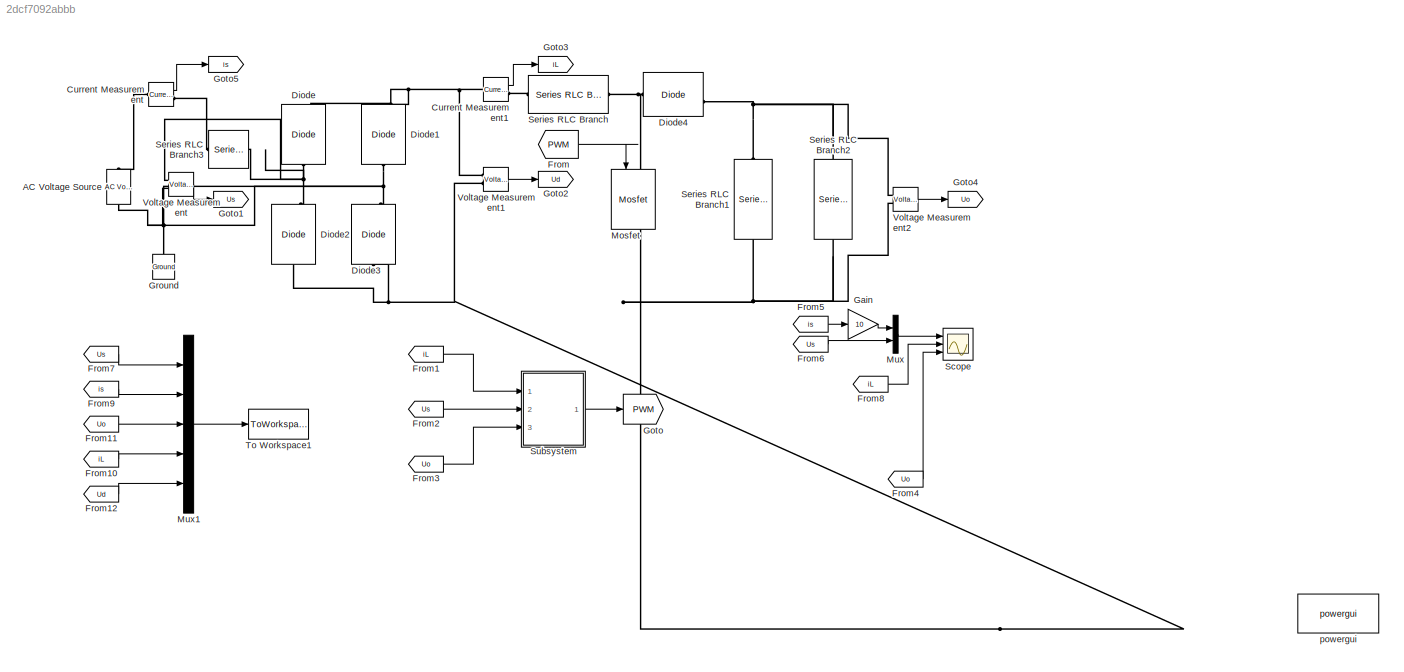
MODEL slx_2dcf7092abbb
KIND model
CONFIG AbsTol = auto
CONFIG EnableMultiTasking = off
CONFIG FixedStep = auto
CONFIG MaxStep = 1e-6
CONFIG MinStep = auto
CONFIG RelTol = 1e-3
CONFIG SampleTimeConstraint = Unconstrained
CONFIG Solver = VariableStepAuto
CONFIG SolverName = VariableStepAuto
CONFIG StartTime = 0.0
CONFIG StopTime = 0.2
BLOCK [Reference] AC Voltage Source  REF=powerlib/Electrical
Sources/AC Voltage Source
  Ports = [0, 0, 0, 0, 0, 1, 1]
  SourceBlock = powerlib/Electrical\nSources/AC Voltage Source
  SourceProductBaseCode = PS
  SourceProductName = Simscape Electrical
  SourceType = AC Voltage Source
BLOCK [Reference] Current Measurement  REF=powerlib/Measurements/Current Measurement
  Ports = [0, 1, 0, 0, 0, 1, 1]
  SourceBlock = powerlib/Measurements/Current Measurement
  SourceProductBaseCode = PS
  SourceProductName = Simscape Electrical
  SourceType = Current Measurement
  UserDataPersistent = on
BLOCK [Reference] Current Measurement1  REF=powerlib/Measurements/Current Measurement
  Ports = [0, 1, 0, 0, 0, 1, 1]
  SourceBlock = powerlib/Measurements/Current Measurement
  SourceProductBaseCode = PS
  SourceProductName = Simscape Electrical
  SourceType = Current Measurement
  UserDataPersistent = on
BLOCK [Reference] Diode  REF=powerlib/Power
Electronics/Diode
  Ports = [0, 1, 0, 0, 0, 1, 1]
  SourceBlock = powerlib/Power\nElectronics/Diode
  SourceProductBaseCode = PS
  SourceProductName = Simscape Electrical
  SourceType = Diode
BLOCK [Reference] Diode1  REF=powerlib/Power
Electronics/Diode
  Ports = [0, 1, 0, 0, 0, 1, 1]
  SourceBlock = powerlib/Power\nElectronics/Diode
  SourceProductBaseCode = PS
  SourceProductName = Simscape Electrical
  SourceType = Diode
BLOCK [Reference] Diode2  REF=powerlib/Power
Electronics/Diode
  Ports = [0, 1, 0, 0, 0, 1, 1]
  SourceBlock = powerlib/Power\nElectronics/Diode
  SourceProductBaseCode = PS
  SourceProductName = Simscape Electrical
  SourceType = Diode
BLOCK [Reference] Diode3  REF=powerlib/Power
Electronics/Diode
  Ports = [0, 1, 0, 0, 0, 1, 1]
  SourceBlock = powerlib/Power\nElectronics/Diode
  SourceProductBaseCode = PS
  SourceProductName = Simscape Electrical
  SourceType = Diode
BLOCK [Reference] Diode4  REF=powerlib/Power
Electronics/Diode
  Ports = [0, 1, 0, 0, 0, 1, 1]
  SourceBlock = powerlib/Power\nElectronics/Diode
  SourceProductBaseCode = PS
  SourceProductName = Simscape Electrical
  SourceType = Diode
BLOCK [From] From
  GotoTag = PWM
  IconDisplay = Signal name
BLOCK [From] From1
  GotoTag = iL
BLOCK [From] From10
  GotoTag = iL
BLOCK [From] From11
  GotoTag = Uo
BLOCK [From] From12
  GotoTag = Ud
BLOCK [From] From2
  GotoTag = Us
BLOCK [From] From3
  GotoTag = Uo
BLOCK [From] From4
  GotoTag = Uo
BLOCK [From] From5
  GotoTag = is
BLOCK [From] From6
  GotoTag = Us
BLOCK [From] From7
  GotoTag = Us
BLOCK [From] From8
  GotoTag = iL
BLOCK [From] From9
  GotoTag = is
BLOCK [Gain] Gain
  Gain = 10
  OutDataTypeStr = Inherit: Inherit via internal rule
  ParamDataTypeStr = Inherit: Inherit via internal rule
  SaturateOnIntegerOverflow = off
BLOCK [Goto] Goto
  GotoTag = PWM
BLOCK [Goto] Goto1
  GotoTag = Us
BLOCK [Goto] Goto2
  GotoTag = Ud
BLOCK [Goto] Goto3
  GotoTag = iL
BLOCK [Goto] Goto4
  GotoTag = Uo
BLOCK [Goto] Goto5
  GotoTag = is
BLOCK [Reference] Ground  REF=powerlib/Elements/Ground
  Ports = [0, 0, 0, 0, 0, 1]
  SourceBlock = powerlib/Elements/Ground
  SourceProductBaseCode = PS
  SourceProductName = Simscape Electrical
  SourceType = Ground
BLOCK [Reference] Mosfet  REF=powerlib/Power
Electronics/Mosfet
  Ports = [1, 1, 0, 0, 0, 1, 1]
  SourceBlock = powerlib/Power\nElectronics/Mosfet
  SourceProductBaseCode = PS
  SourceProductName = Simscape Electrical
  SourceType = Mosfet
BLOCK [Mux] Mux
  DisplayOption = bar
  Inputs = 2
  Ports = [2, 1]
BLOCK [Mux] Mux1
  DisplayOption = bar
  Inputs = 5
  Ports = [5, 1]
BLOCK [Scope] Scope
  Floating = off
  NumInputPorts = 3
  Ports = [3]
  ScopeSpecificationString = Simulink.scopes.TimeScopeBlockCfg('CurrentConfiguration', extmgr.ConfigurationSet(extmgr.Configuration('Core','General UI',true),extmgr.Configuration('Core','Source UI',true),extmgr.Configuration('Sources','WiredSimulink',true),extmgr.Configuration('Visuals','Time Domain',true,'SerializedDisplays',{struct('MinYLimReal','-400.54536','MaxYLimReal','400.44376','YLabelReal','','MinYLimMag',' 0.00000',...<+2714ch>
BLOCK [Reference] Series RLC Branch  REF=powerlib/Elements/Series RLC Branch
  Ports = [0, 0, 0, 0, 0, 1, 1]
  SourceBlock = powerlib/Elements/Series RLC Branch
  SourceProductBaseCode = PS
  SourceProductName = Simscape Electrical
  SourceType = Series RLC Branch
BLOCK [Reference] Series RLC Branch1  REF=powerlib/Elements/Series RLC Branch
  Ports = [0, 0, 0, 0, 0, 1, 1]
  SourceBlock = powerlib/Elements/Series RLC Branch
  SourceProductBaseCode = PS
  SourceProductName = Simscape Electrical
  SourceType = Series RLC Branch
BLOCK [Reference] Series RLC Branch2  REF=powerlib/Elements/Series RLC Branch
  Ports = [0, 0, 0, 0, 0, 1, 1]
  SourceBlock = powerlib/Elements/Series RLC Branch
  SourceProductBaseCode = PS
  SourceProductName = Simscape Electrical
  SourceType = Series RLC Branch
BLOCK [Reference] Series RLC Branch3  REF=powerlib/Elements/Series RLC Branch
  Ports = [0, 0, 0, 0, 0, 1, 1]
  SourceBlock = powerlib/Elements/Series RLC Branch
  SourceProductBaseCode = PS
  SourceProductName = Simscape Electrical
  SourceType = Series RLC Branch
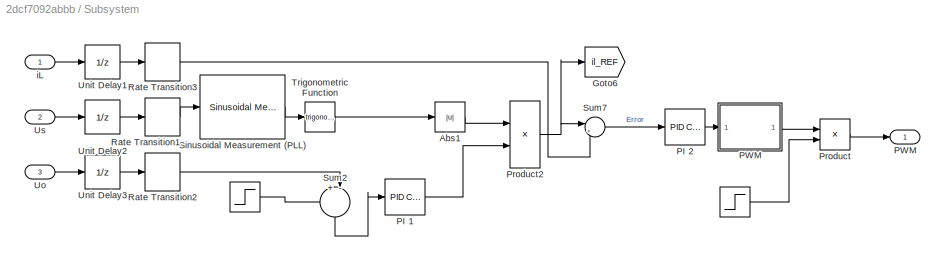
BLOCK [SubSystem] Subsystem
  Ports = [3, 1]
  RequestExecContextInheritance = off
BLOCK [Step] Subsystem/ 
  SampleTime = Tsc
  Time = 0.1
BLOCK [Step] Subsystem/  
  After = 350
  SampleTime = Tsc
  Time = 0
BLOCK [Abs] Subsystem/Abs1
  SaturateOnIntegerOverflow = off
BLOCK [Goto] Subsystem/Goto6
  GotoTag = il_REF
  TagVisibility = global
BLOCK [Reference] Subsystem/PI 1  REF=simulink/Continuous/PID Controller
  Ports = [1, 1]
  SourceBlock = simulink/Continuous/PID Controller
  SourceProductBaseCode = SL
  SourceProductName = Simulink
  SourceType = PID 1dof
BLOCK [Reference] Subsystem/PI 2  REF=simulink/Continuous/PID Controller
  Ports = [1, 1]
  SourceBlock = simulink/Continuous/PID Controller
  SourceProductBaseCode = SL
  SourceProductName = Simulink
  SourceType = PID 1dof
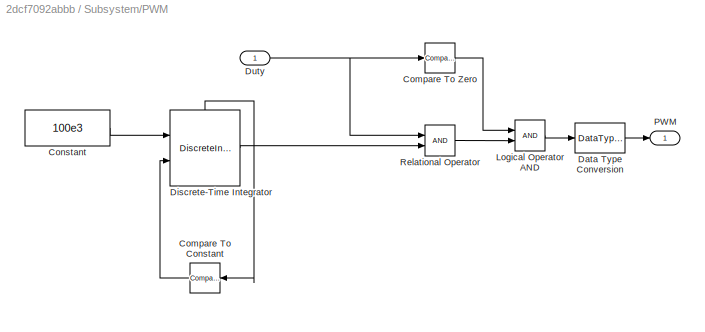
BLOCK [SubSystem] Subsystem/PWM
  Ports = [1, 1]
  RequestExecContextInheritance = off
BLOCK [Outport] Subsystem/PWM 
  IconDisplay = Port number
BLOCK [Reference] Subsystem/PWM/Compare To Constant  REF=simulink/Logic and Bit
Operations/Compare
To Constant
  Ports = [1, 1]
  SourceBlock = simulink/Logic and Bit\nOperations/Compare\nTo Constant
  SourceProductBaseCode = SL
  SourceProductName = Simulink
  SourceType = Compare To Constant
BLOCK [Reference] Subsystem/PWM/Compare To Zero  REF=simulink/Logic and Bit
Operations/Compare
To Zero
  Ports = [1, 1]
  SourceBlock = simulink/Logic and Bit\nOperations/Compare\nTo Zero
  SourceProductBaseCode = SL
  SourceProductName = Simulink
  SourceType = Compare To Zero
BLOCK [Constant] Subsystem/PWM/Constant
  SampleTime = Tsc
  Value = 100e3
BLOCK [DataTypeConversion] Subsystem/PWM/Data Type Conversion
  OutDataTypeStr = double
  RndMeth = Floor
  SaturateOnIntegerOverflow = off
BLOCK [DiscreteIntegrator] Subsystem/PWM/Discrete-Time Integrator
  ExternalReset = rising
  ICPrevOutput = DiscIntNeverNeededParam
  ICPrevScaledInput = DiscIntNeverNeededParam
  InitialConditionSetting = Auto
  Ports = [2, 1, 0, 0, 1]
  SampleTime = Tsc
  ShowStatePort = on
BLOCK [Inport] Subsystem/PWM/Duty
  IconDisplay = Port number
BLOCK [Logic] Subsystem/PWM/Logical Operator AND
  AllPortsSameDT = off
  OutDataTypeStr = boolean
  Ports = [2, 1]
BLOCK [Outport] Subsystem/PWM/PWM
  IconDisplay = Port number
  VectorParamsAs1DForOutWhenUnconnected = off
BLOCK [RelationalOperator] Subsystem/PWM/Relational Operator
  InputSameDT = off
  OutDataTypeStr = boolean
  Ports = [2, 1]
BLOCK [Product] Subsystem/Product
  InputSameDT = off
  OutDataTypeStr = Inherit: Inherit via internal rule
  Ports = [2, 1]
  RndMeth = Floor
  SaturateOnIntegerOverflow = off
BLOCK [Product] Subsystem/Product2
  InputSameDT = off
  OutDataTypeStr = Inherit: Inherit via internal rule
  Ports = [2, 1]
  RndMeth = Floor
  SaturateOnIntegerOverflow = off
BLOCK [RateTransition] Subsystem/Rate Transition1
  OutPortSampleTime = Tsc
BLOCK [RateTransition] Subsystem/Rate Transition2
  OutPortSampleTime = Tsc
BLOCK [RateTransition] Subsystem/Rate Transition3
  OutPortSampleTime = Tsc
BLOCK [Reference] Subsystem/Sinusoidal Measurement (PLL)  REF=eeSinusoidalMeasurement/Sinusoidal Measurement
(PLL)
  Ports = [1, 3]
  SourceBlock = eeSinusoidalMeasurement/Sinusoidal Measurement\n(PLL)
  SourceProductBaseCode = PS
  SourceProductName = Simscape Electrical
  SourceType = Sinusoidal Measurement (PLL)
BLOCK [Sum] Subsystem/Sum2
  IconShape = round
  InputSameDT = off
  Inputs = +-||
  OutDataTypeStr = Inherit: Inherit via internal rule
  Ports = [2, 1]
  SaturateOnIntegerOverflow = off
BLOCK [Sum] Subsystem/Sum7
  IconShape = round
  InputSameDT = off
  Inputs = |+-
  OutDataTypeStr = Inherit: Inherit via internal rule
  Ports = [2, 1]
  SaturateOnIntegerOverflow = off
BLOCK [Trigonometry] Subsystem/Trigonometric Function
  Ports = [1, 1]
BLOCK [UnitDelay] Subsystem/Unit Delay1
  HasFrameUpgradeWarning = on
  SampleTime = -1
BLOCK [UnitDelay] Subsystem/Unit Delay2
  HasFrameUpgradeWarning = on
  SampleTime = -1
BLOCK [UnitDelay] Subsystem/Unit Delay3
  HasFrameUpgradeWarning = on
  SampleTime = -1
BLOCK [Inport] Subsystem/Uo
  IconDisplay = Port number
  Port = 3
BLOCK [Inport] Subsystem/Us
  IconDisplay = Port number
  Port = 2
BLOCK [Inport] Subsystem/iL
  IconDisplay = Port number
BLOCK [ToWorkspace] To Workspace1
  MaxDataPoints = inf
  Ports = [1]
  SampleTime = -1
  SaveFormat = Structure With Time
  VariableName = UI_signals
BLOCK [Reference] Voltage Measurement  REF=powerlib/Measurements/Voltage Measurement
  Ports = [0, 1, 0, 0, 0, 2]
  SourceBlock = powerlib/Measurements/Voltage Measurement
  SourceProductBaseCode = PS
  SourceProductName = Simscape Electrical
  SourceType = Voltage Measurement
  UserDataPersistent = on
BLOCK [Reference] Voltage Measurement1  REF=powerlib/Measurements/Voltage Measurement
  Ports = [0, 1, 0, 0, 0, 2]
  SourceBlock = powerlib/Measurements/Voltage Measurement
  SourceProductBaseCode = PS
  SourceProductName = Simscape Electrical
  SourceType = Voltage Measurement
  UserDataPersistent = on
BLOCK [Reference] Voltage Measurement2  REF=powerlib/Measurements/Voltage Measurement
  Ports = [0, 1, 0, 0, 0, 2]
  SourceBlock = powerlib/Measurements/Voltage Measurement
  SourceProductBaseCode = PS
  SourceProductName = Simscape Electrical
  SourceType = Voltage Measurement
  UserDataPersistent = on
BLOCK [Reference] powergui  REF=powerlib/powergui
  Ports = []
  Priority = 1
  SourceBlock = powerlib/powergui
  SourceProductBaseCode = PS
  SourceProductName = Simscape Electrical
  SourceType = PSB option menu block
LINE Current Measurement1:1 -> Goto3:1
LINE Current Measurement:1 -> Goto5:1
LINE From10:1 -> Mux1:4
LINE From11:1 -> Mux1:3
LINE From12:1 -> Mux1:5
LINE From1:1 -> Subsystem:1
LINE From2:1 -> Subsystem:2
LINE From3:1 -> Subsystem:3
LINE From4:1 -> Scope:3
LINE From5:1 -> Gain:1
LINE From6:1 -> Mux:2
LINE From7:1 -> Mux1:1
LINE From8:1 -> Scope:2
LINE From9:1 -> Mux1:2
LINE From:1 -> Mosfet:1
LINE Gain:1 -> Mux:1
LINE Mux1:1 -> To Workspace1:1
LINE Mux:1 -> Scope:1
LINE Subsystem/  :1 -> Subsystem/Sum2:1
LINE Subsystem/ :1 -> Subsystem/Product:2
LINE Subsystem/Abs1:1 -> Subsystem/Product2:1
LINE Subsystem/PI 1:1 -> Subsystem/Product2:2
LINE Subsystem/PI 2:1 -> Subsystem/PWM:1
LINE Subsystem/PWM/Compare To Constant:1 -> Subsystem/PWM/Discrete-Time Integrator:2
LINE Subsystem/PWM/Compare To Zero:1 -> Subsystem/PWM/Logical Operator AND:1
LINE Subsystem/PWM/Constant:1 -> Subsystem/PWM/Discrete-Time Integrator:1
LINE Subsystem/PWM/Data Type Conversion:1 -> Subsystem/PWM/PWM:1
LINE Subsystem/PWM/Discrete-Time Integrator:1 -> Subsystem/PWM/Relational Operator:2
LINE Subsystem/PWM/Discrete-Time Integrator:state -> Subsystem/PWM/Compare To Constant:1
NET Subsystem/PWM/Duty:1 -> Subsystem/PWM/Compare To Zero:1, Subsystem/PWM/Relational Operator:1
LINE Subsystem/PWM/Logical Operator AND:1 -> Subsystem/PWM/Data Type Conversion:1
LINE Subsystem/PWM/Relational Operator:1 -> Subsystem/PWM/Logical Operator AND:2
LINE Subsystem/PWM:1 -> Subsystem/Product:1
NET Subsystem/Product2:1 -> Subsystem/Goto6:1, Subsystem/Sum7:1
LINE Subsystem/Product:1 -> Subsystem/PWM :1
LINE Subsystem/Rate Transition1:1 -> Subsystem/Sinusoidal Measurement (PLL):1
LINE Subsystem/Rate Transition2:1 -> Subsystem/Sum2:2
LINE Subsystem/Rate Transition3:1 -> Subsystem/Sum7:2
LINE Subsystem/Sinusoidal Measurement (PLL):2 -> Subsystem/Trigonometric Function:1
LINE Subsystem/Sum2:1 -> Subsystem/PI 1:1
LINE Subsystem/Sum7:1 -> Subsystem/PI 2:1
LINE Subsystem/Trigonometric Function:1 -> Subsystem/Abs1:1
LINE Subsystem/Unit Delay1:1 -> Subsystem/Rate Transition3:1
LINE Subsystem/Unit Delay2:1 -> Subsystem/Rate Transition1:1
LINE Subsystem/Unit Delay3:1 -> Subsystem/Rate Transition2:1
LINE Subsystem/Uo:1 -> Subsystem/Unit Delay3:1
LINE Subsystem/Us:1 -> Subsystem/Unit Delay2:1
LINE Subsystem/iL:1 -> Subsystem/Unit Delay1:1
LINE Subsystem:1 -> Goto:1
LINE Voltage Measurement1:1 -> Goto2:1
LINE Voltage Measurement2:1 -> Goto4:1
LINE Voltage Measurement:1 -> Goto1:1
PNET net1: AC Voltage Source:LConn1 -- Diode1:LConn1 -- Diode3:RConn1 -- Ground:LConn1 -- Voltage Measurement:LConn2
PLINE AC Voltage Source:RConn1 -- Current Measurement:LConn1
PNET net2: Current Measurement1:LConn1 -- Diode1:RConn1 -- Diode:RConn1 -- Voltage Measurement1:LConn1
PLINE Current Measurement1:RConn1 -- Series RLC Branch:LConn1
PLINE Current Measurement:RConn1 -- Series RLC Branch3:LConn1
PNET net3: Diode2:LConn1 -- Diode3:LConn1 -- Mosfet:RConn1 -- Series RLC Branch1:RConn1 -- Series RLC Branch2:RConn1 -- Voltage Measurement1:LConn2 -- Voltage Measurement2:LConn2
PNET net4: Diode2:RConn1 -- Diode:LConn1 -- Series RLC Branch3:RConn1 -- Voltage Measurement:LConn1
PNET net5: Diode4:LConn1 -- Mosfet:LConn1 -- Series RLC Branch:RConn1
PNET net6: Diode4:RConn1 -- Series RLC Branch1:LConn1 -- Series RLC Branch2:LConn1 -- Voltage Measurement2:LConn1
note: NET lines group one-source signal fan-out (src -> all destinations, sorted); 1:1 wires keep LINE; PNET lines group multi-terminal physical nets as a canonical sorted terminal list (undirected conserving connections); 2-terminal nets keep the pairwise PLINE form
